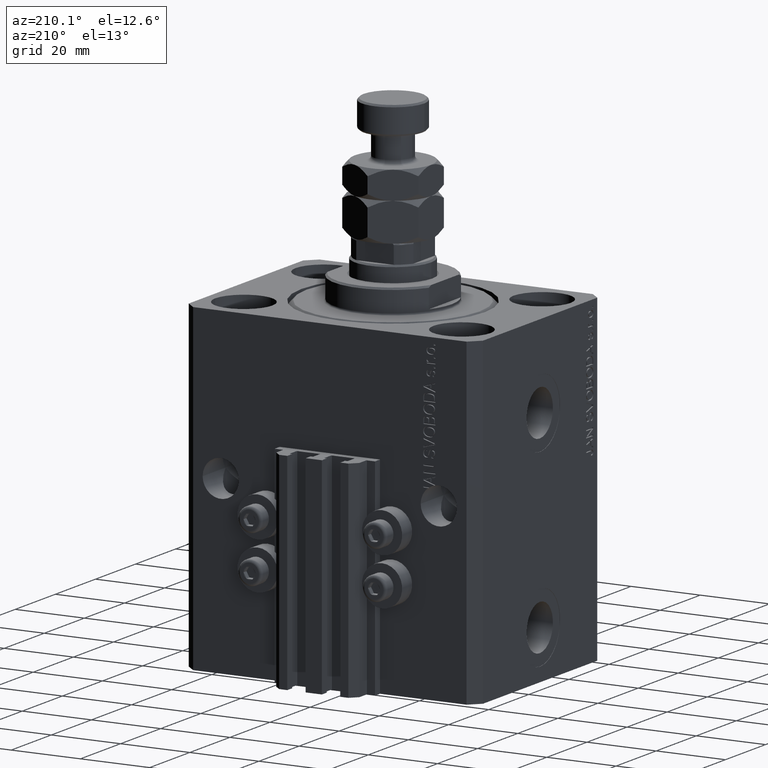
[diagram: clean part render]
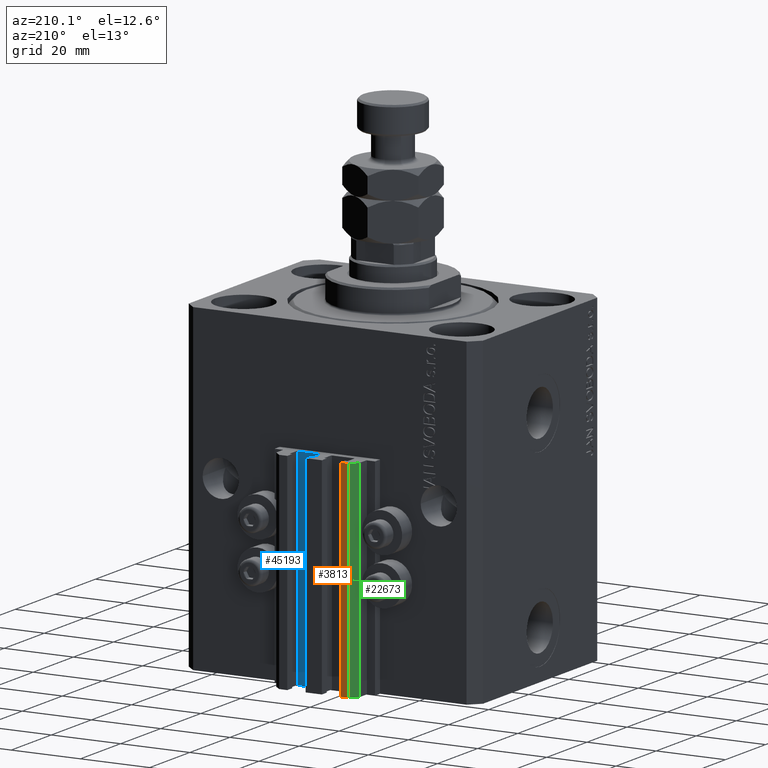
[diagram: same view with three faces highlighted in distinct colors, each labeled with its STEP entity id]
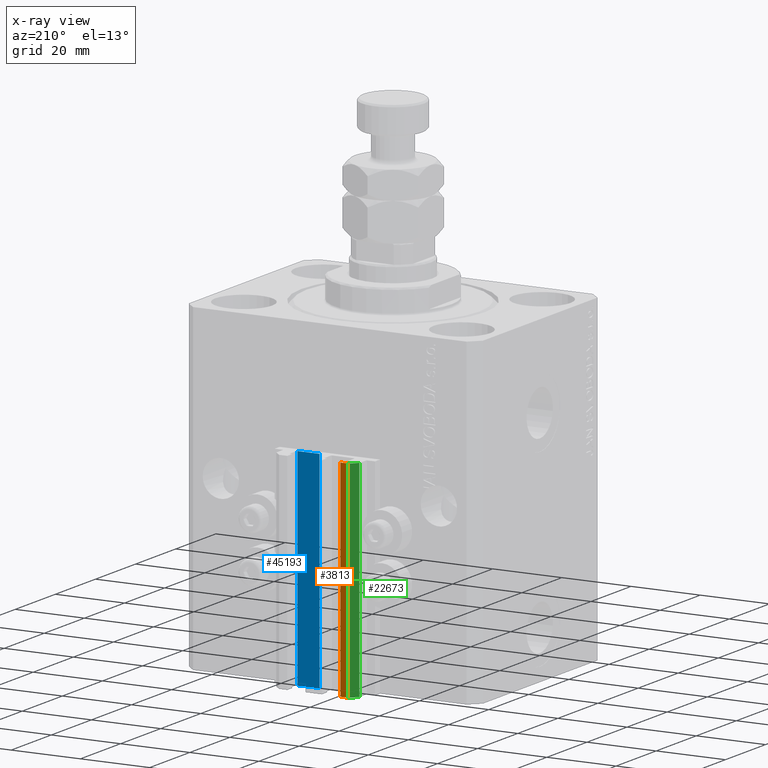
[diagram: x-ray of the same camera — body ghosted, the three highlighted faces saturated]
A machine part, auxiliary view with three faces highlighted in distinct colors.
The next image is the same camera in x-ray (body ghosted, the three faces saturated) — at least one of them is partly hidden behind the body in this view.
Their STEP definitions:

[orange] entity #3813 — the highlighted planar face has unit normal (0, 1, 0).
#1471 = LINE ( 'NONE', #42829, #26380 ) ;
#1510 = CARTESIAN_POINT ( 'NONE',  ( -7.650000000000002132, 39.49999999999999289, -93.00000000000000000 ) ) ;
#1681 = VERTEX_POINT ( 'NONE', #13441 ) ;
#3813 = ADVANCED_FACE ( 'NONE', ( #6697 ), #21865, .T. ) ;
#6697 = FACE_OUTER_BOUND ( 'NONE', #26114, .T. ) ;
#8629 = EDGE_CURVE ( 'NONE', #27226, #1681, #32198, .T. ) ;
#9213 = DIRECTION ( 'NONE',  ( -1.000000000000000000, 0.000000000000000000, 0.000000000000000000 ) ) ;
#9414 = DIRECTION ( 'NONE',  ( 0.000000000000000000, 0.000000000000000000, 1.000000000000000000 ) ) ;
#10173 = DIRECTION ( 'NONE',  ( 0.000000000000000000, 1.000000000000000000, -0.000000000000000000 ) ) ;
#10804 = CARTESIAN_POINT ( 'NONE',  ( -7.650000000000002132, 39.49999999999999289, -33.00000000000000000 ) ) ;
#12580 = EDGE_CURVE ( 'NONE', #25114, #35786, #1471, .T. ) ;
#13441 = CARTESIAN_POINT ( 'NONE',  ( -7.650000000000002132, 39.49999999999999289, -33.00000000000000000 ) ) ;
#16428 = LINE ( 'NONE', #1510, #45234 ) ;
#17380 = ORIENTED_EDGE ( 'NONE', *, *, #34547, .T. ) ;
#21264 = EDGE_CURVE ( 'NONE', #1681, #35786, #40694, .T. ) ;
#21865 = PLANE ( 'NONE',  #45952 ) ;
#22412 = CARTESIAN_POINT ( 'NONE',  ( -10.00000000000000000, 39.49999999999999289, -33.00000000000000000 ) ) ;
#23024 = VECTOR ( 'NONE', #25218, 1000.000000000000000 ) ;
#25114 = VERTEX_POINT ( 'NONE', #42329 ) ;
#25218 = DIRECTION ( 'NONE',  ( 0.000000000000000000, 0.000000000000000000, 1.000000000000000000 ) ) ;
#25743 = DIRECTION ( 'NONE',  ( -1.000000000000000000, 0.000000000000000000, 0.000000000000000000 ) ) ;
#26114 = EDGE_LOOP ( 'NONE', ( #37814, #45488, #17380, #33783 ) ) ;
#26380 = VECTOR ( 'NONE', #9414, 1000.000000000000000 ) ;
#27226 = VERTEX_POINT ( 'NONE', #34424 ) ;
#29839 = CARTESIAN_POINT ( 'NONE',  ( -7.650000000000002132, 39.49999999999999289, -93.00000000000000000 ) ) ;
#32198 = LINE ( 'NONE', #36188, #23024 ) ;
#32916 = VECTOR ( 'NONE', #25743, 1000.000000000000000 ) ;
#33783 = ORIENTED_EDGE ( 'NONE', *, *, #12580, .T. ) ;
#34424 = CARTESIAN_POINT ( 'NONE',  ( -7.650000000000002132, 39.49999999999999289, -93.00000000000000000 ) ) ;
#34547 = EDGE_CURVE ( 'NONE', #27226, #25114, #16428, .T. ) ;
#35786 = VERTEX_POINT ( 'NONE', #22412 ) ;
#36188 = CARTESIAN_POINT ( 'NONE',  ( -7.650000000000002132, 39.49999999999999289, -93.00000000000000000 ) ) ;
#37062 = DIRECTION ( 'NONE',  ( 0.000000000000000000, 0.000000000000000000, 1.000000000000000000 ) ) ;
#37814 = ORIENTED_EDGE ( 'NONE', *, *, #21264, .F. ) ;
#40694 = LINE ( 'NONE', #10804, #32916 ) ;
#42329 = CARTESIAN_POINT ( 'NONE',  ( -10.00000000000000000, 39.49999999999999289, -93.00000000000000000 ) ) ;
#42829 = CARTESIAN_POINT ( 'NONE',  ( -10.00000000000000000, 39.49999999999999289, -93.00000000000000000 ) ) ;
#45234 = VECTOR ( 'NONE', #9213, 1000.000000000000000 ) ;
#45488 = ORIENTED_EDGE ( 'NONE', *, *, #8629, .F. ) ;
#45952 = AXIS2_PLACEMENT_3D ( 'NONE', #29839, #10173, #37062 ) ;

[blue] entity #45193 — the highlighted planar face has unit normal (0, 1, 0).
#3304 = CARTESIAN_POINT ( 'NONE',  ( 1.800000000000000933, 33.50000000000000000, -93.00000000000000000 ) ) ;
#3978 = CARTESIAN_POINT ( 'NONE',  ( 8.199999999999999289, 33.50000000000000000, -93.00000000000000000 ) ) ;
#4345 = VERTEX_POINT ( 'NONE', #41295 ) ;
#8244 = DIRECTION ( 'NONE',  ( 0.000000000000000000, 1.000000000000000000, -0.000000000000000000 ) ) ;
#8345 = EDGE_CURVE ( 'NONE', #31570, #4345, #21802, .T. ) ;
#11533 = VERTEX_POINT ( 'NONE', #3978 ) ;
#11729 = FACE_OUTER_BOUND ( 'NONE', #36557, .T. ) ;
#12579 = CARTESIAN_POINT ( 'NONE',  ( 8.199999999999999289, 33.50000000000000000, -93.00000000000000000 ) ) ;
#12816 = DIRECTION ( 'NONE',  ( 0.000000000000000000, 0.000000000000000000, 1.000000000000000000 ) ) ;
#14614 = VECTOR ( 'NONE', #12816, 1000.000000000000000 ) ;
#15530 = ORIENTED_EDGE ( 'NONE', *, *, #30203, .T. ) ;
#15607 = CARTESIAN_POINT ( 'NONE',  ( 8.199999999999999289, 33.50000000000000000, -33.00000000000000000 ) ) ;
#15815 = ORIENTED_EDGE ( 'NONE', *, *, #21032, .F. ) ;
#16070 = LINE ( 'NONE', #12579, #14614 ) ;
#20750 = ORIENTED_EDGE ( 'NONE', *, *, #27306, .F. ) ;
#21032 = EDGE_CURVE ( 'NONE', #11533, #26515, #16070, .T. ) ;
#21296 = CARTESIAN_POINT ( 'NONE',  ( 1.800000000000000933, 33.50000000000000000, -93.00000000000000000 ) ) ;
#21423 = DIRECTION ( 'NONE',  ( -1.000000000000000000, 0.000000000000000000, 0.000000000000000000 ) ) ;
#21802 = LINE ( 'NONE', #21296, #30179 ) ;
#22414 = LINE ( 'NONE', #45094, #35543 ) ;
#25608 = DIRECTION ( 'NONE',  ( -1.000000000000000000, 0.000000000000000000, 0.000000000000000000 ) ) ;
#26515 = VERTEX_POINT ( 'NONE', #15607 ) ;
#27163 = CARTESIAN_POINT ( 'NONE',  ( 8.199999999999999289, 33.50000000000000000, -93.00000000000000000 ) ) ;
#27306 = EDGE_CURVE ( 'NONE', #26515, #4345, #22414, .T. ) ;
#29105 = LINE ( 'NONE', #44307, #33284 ) ;
#30179 = VECTOR ( 'NONE', #36501, 1000.000000000000000 ) ;
#30203 = EDGE_CURVE ( 'NONE', #11533, #31570, #29105, .T. ) ;
#31570 = VERTEX_POINT ( 'NONE', #3304 ) ;
#33284 = VECTOR ( 'NONE', #25608, 1000.000000000000000 ) ;
#35543 = VECTOR ( 'NONE', #21423, 1000.000000000000000 ) ;
#36501 = DIRECTION ( 'NONE',  ( 0.000000000000000000, 0.000000000000000000, 1.000000000000000000 ) ) ;
#36557 = EDGE_LOOP ( 'NONE', ( #20750, #15815, #15530, #46953 ) ) ;
#40702 = AXIS2_PLACEMENT_3D ( 'NONE', #27163, #8244, #42371 ) ;
#41295 = CARTESIAN_POINT ( 'NONE',  ( 1.800000000000000933, 33.50000000000000000, -33.00000000000000000 ) ) ;
#42371 = DIRECTION ( 'NONE',  ( 0.000000000000000000, 0.000000000000000000, 1.000000000000000000 ) ) ;
#44307 = CARTESIAN_POINT ( 'NONE',  ( 8.199999999999999289, 33.50000000000000000, -93.00000000000000000 ) ) ;
#45094 = CARTESIAN_POINT ( 'NONE',  ( 8.199999999999999289, 33.50000000000000000, -33.00000000000000000 ) ) ;
#45193 = ADVANCED_FACE ( 'NONE', ( #11729 ), #46358, .T. ) ;
#46358 = PLANE ( 'NONE',  #40702 ) ;
#46953 = ORIENTED_EDGE ( 'NONE', *, *, #8345, .T. ) ;

[green] entity #22673 — the highlighted planar face has unit normal (-0.7071, 0.7071, 0).
#1426 = VERTEX_POINT ( 'NONE', #49248 ) ;
#1471 = LINE ( 'NONE', #42829, #26380 ) ;
#1962 = PLANE ( 'NONE',  #24968 ) ;
#3876 = CARTESIAN_POINT ( 'NONE',  ( -10.00000000000000000, 39.49999999999999289, -33.00000000000000000 ) ) ;
#4923 = LINE ( 'NONE', #20090, #5681 ) ;
#5681 = VECTOR ( 'NONE', #27816, 999.9999999999998863 ) ;
#6692 = DIRECTION ( 'NONE',  ( -0.7071067811865479058, 0.7071067811865472397, 0.000000000000000000 ) ) ;
#7119 = DIRECTION ( 'NONE',  ( -0.7071067811865472397, -0.7071067811865479058, 0.000000000000000000 ) ) ;
#9414 = DIRECTION ( 'NONE',  ( 0.000000000000000000, 0.000000000000000000, 1.000000000000000000 ) ) ;
#11076 = LINE ( 'NONE', #11322, #12826 ) ;
#11322 = CARTESIAN_POINT ( 'NONE',  ( -12.00000000000000000, 37.49999999999999289, -93.00000000000000000 ) ) ;
#11867 = ORIENTED_EDGE ( 'NONE', *, *, #16053, .T. ) ;
#12580 = EDGE_CURVE ( 'NONE', #25114, #35786, #1471, .T. ) ;
#12826 = VECTOR ( 'NONE', #26261, 1000.000000000000000 ) ;
#12828 = ORIENTED_EDGE ( 'NONE', *, *, #26732, .F. ) ;
#16053 = EDGE_CURVE ( 'NONE', #25114, #1426, #4923, .T. ) ;
#19373 = ORIENTED_EDGE ( 'NONE', *, *, #41537, .T. ) ;
#20090 = CARTESIAN_POINT ( 'NONE',  ( -10.00000000000000000, 39.49999999999999289, -93.00000000000000000 ) ) ;
#21251 = VECTOR ( 'NONE', #7119, 999.9999999999998863 ) ;
#22412 = CARTESIAN_POINT ( 'NONE',  ( -10.00000000000000000, 39.49999999999999289, -33.00000000000000000 ) ) ;
#22673 = ADVANCED_FACE ( 'NONE', ( #44052 ), #1962, .T. ) ;
#24968 = AXIS2_PLACEMENT_3D ( 'NONE', #44294, #6692, #33327 ) ;
#25114 = VERTEX_POINT ( 'NONE', #42329 ) ;
#26261 = DIRECTION ( 'NONE',  ( 0.000000000000000000, 0.000000000000000000, 1.000000000000000000 ) ) ;
#26380 = VECTOR ( 'NONE', #9414, 1000.000000000000000 ) ;
#26732 = EDGE_CURVE ( 'NONE', #35786, #44762, #45216, .T. ) ;
#26781 = ORIENTED_EDGE ( 'NONE', *, *, #12580, .F. ) ;
#27816 = DIRECTION ( 'NONE',  ( -0.7071067811865472397, -0.7071067811865479058, 0.000000000000000000 ) ) ;
#33327 = DIRECTION ( 'NONE',  ( -0.7071067811865472397, -0.7071067811865479058, 0.000000000000000000 ) ) ;
#35786 = VERTEX_POINT ( 'NONE', #22412 ) ;
#36627 = EDGE_LOOP ( 'NONE', ( #12828, #26781, #11867, #19373 ) ) ;
#41537 = EDGE_CURVE ( 'NONE', #1426, #44762, #11076, .T. ) ;
#42329 = CARTESIAN_POINT ( 'NONE',  ( -10.00000000000000000, 39.49999999999999289, -93.00000000000000000 ) ) ;
#42829 = CARTESIAN_POINT ( 'NONE',  ( -10.00000000000000000, 39.49999999999999289, -93.00000000000000000 ) ) ;
#44017 = CARTESIAN_POINT ( 'NONE',  ( -12.00000000000000000, 37.49999999999999289, -33.00000000000000000 ) ) ;
#44052 = FACE_OUTER_BOUND ( 'NONE', #36627, .T. ) ;
#44294 = CARTESIAN_POINT ( 'NONE',  ( -10.00000000000000000, 39.49999999999999289, -93.00000000000000000 ) ) ;
#44762 = VERTEX_POINT ( 'NONE', #44017 ) ;
#45216 = LINE ( 'NONE', #3876, #21251 ) ;
#49248 = CARTESIAN_POINT ( 'NONE',  ( -12.00000000000000000, 37.49999999999999289, -93.00000000000000000 ) ) ;